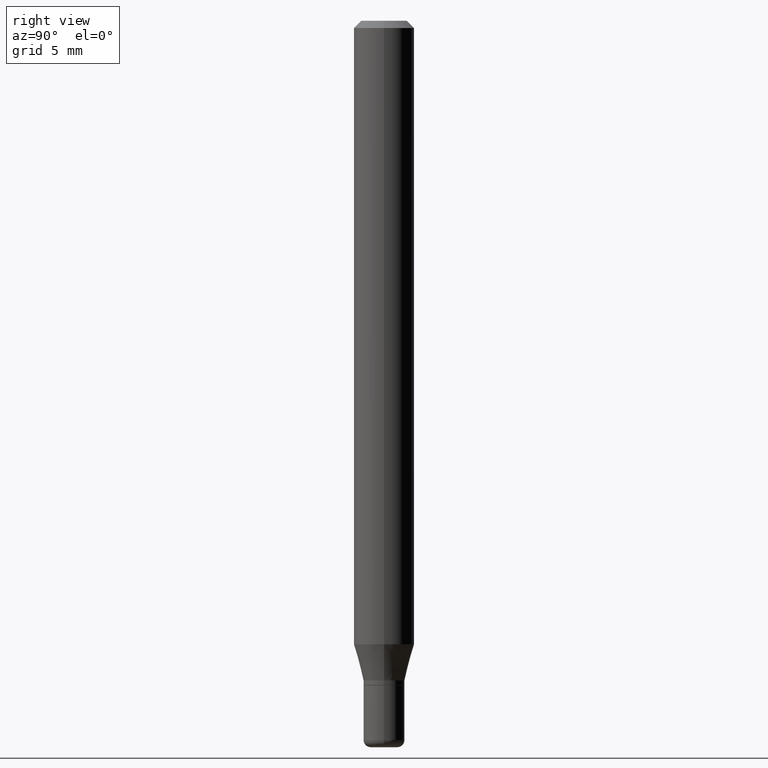
[diagram: clean part render]
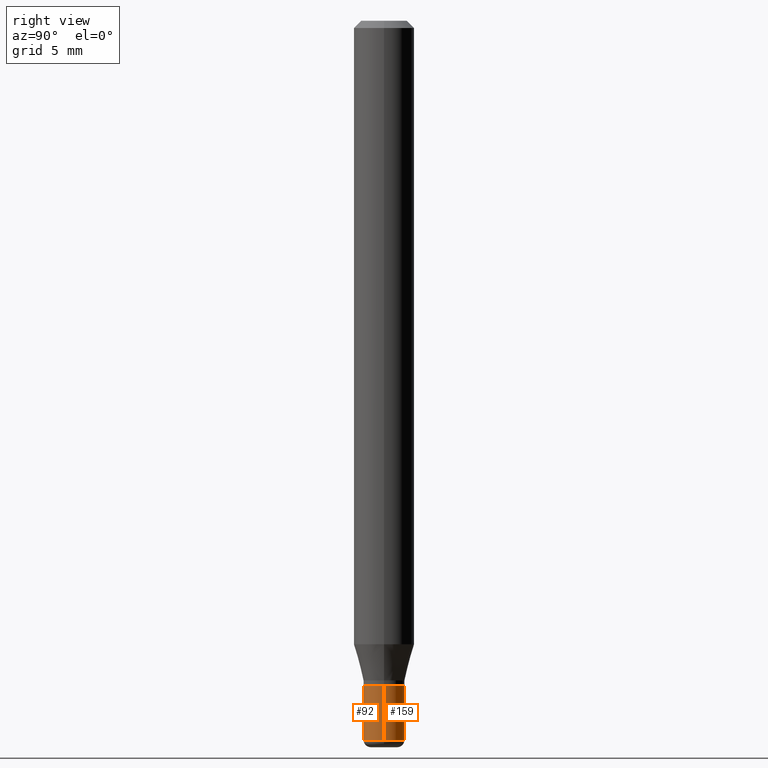
[diagram: same view with one multi-face feature highlighted, each face labeled with its STEP entity id]
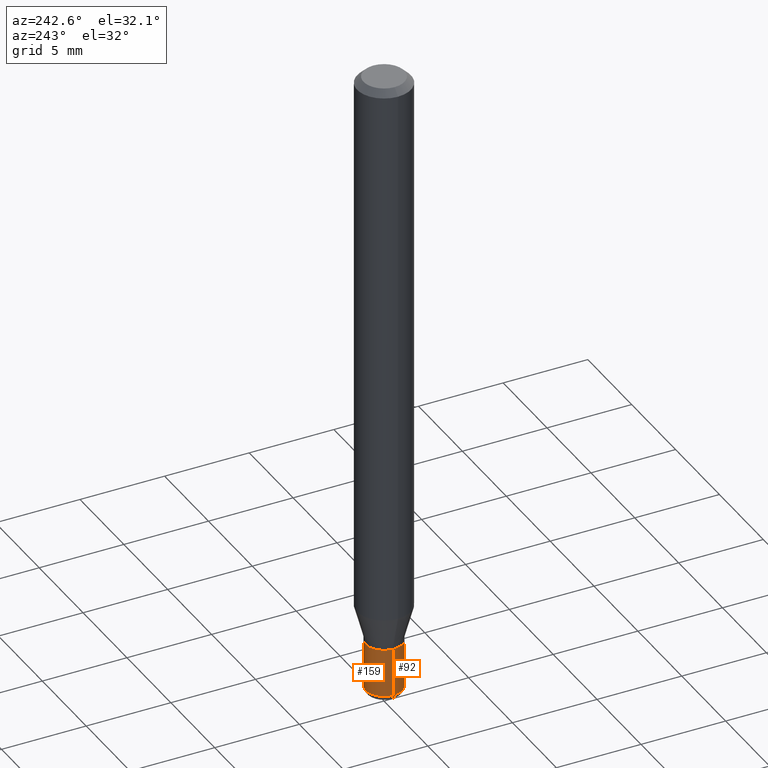
[diagram: same view with one multi-face feature highlighted, each face labeled with its STEP entity id]
A machine part, right view. The highlighted faces form ONE feature: a constant-radius fillet chain: 2 tangent blend faces with common blend radius 1.0795 mm. The faces share edges in the B-rep.
A second angle (auxiliary view) of the same feature is appended — it is thin or edge-on in the first view.
Their STEP definitions:
[1] entity #159 (Cylinder):
#12 = DIRECTION ( 'NONE',  ( -2.445468806185136877E-29, 3.491481338843145188E-15, 1.000000000000000000 ) ) ;
#33 = DIRECTION ( 'NONE',  ( -2.445468806185136597E-29, 3.491481338843145583E-15, 1.000000000000000000 ) ) ;
#39 = CARTESIAN_POINT ( 'NONE',  ( 3.356405936489099934E-29, -4.792058137562217412E-15, -1.372500000000000275 ) ) ;
#49 = ORIENTED_EDGE ( 'NONE', *, *, #429, .F. ) ;
#54 = CARTESIAN_POINT ( 'NONE',  ( 0.04249999999999998918, -2.967759138016663056E-16, 2.072375129713272151E-30 ) ) ;
#55 = VERTEX_POINT ( 'NONE', #490 ) ;
#77 = AXIS2_PLACEMENT_3D ( 'NONE', #378, #456, #184 ) ;
#100 = CYLINDRICAL_SURFACE ( 'NONE', #77, 0.04249999999999998918 ) ;
#110 = ORIENTED_EDGE ( 'NONE', *, *, #245, .F. ) ;
#128 = DIRECTION ( 'NONE',  ( -2.445468806185136597E-29, 3.491481338843145583E-15, 1.000000000000000000 ) ) ;
#148 = CIRCLE ( 'NONE', #241, 0.04249999999999998918 ) ;
#159 = ADVANCED_FACE ( 'NONE', ( #372 ), #100, .T. ) ;
#162 = DIRECTION ( 'NONE',  ( 1.000000000000000000, -6.982962677686276177E-15, 0.000000000000000000 ) ) ;
#174 = CARTESIAN_POINT ( 'NONE',  ( 3.631521177184928138E-29, -5.184849788182071492E-15, -1.485000000000000098 ) ) ;
#184 = DIRECTION ( 'NONE',  ( 1.000000000000000000, -6.982962677686267499E-15, 4.876176775795935793E-29 ) ) ;
#195 = ORIENTED_EDGE ( 'NONE', *, *, #480, .T. ) ;
#205 = CIRCLE ( 'NONE', #261, 0.04249999999999999611 ) ;
#209 = ORIENTED_EDGE ( 'NONE', *, *, #449, .T. ) ;
#233 = CARTESIAN_POINT ( 'NONE',  ( -0.04249999999999999611, -4.686473300174102393E-15, -1.372500000000000275 ) ) ;
#239 = LINE ( 'NONE', #54, #391 ) ;
#241 = AXIS2_PLACEMENT_3D ( 'NONE', #174, #128, #283 ) ;
#245 = EDGE_CURVE ( 'NONE', #424, #306, #205, .T. ) ;
#251 = VECTOR ( 'NONE', #12, 39.37007874015748143 ) ;
#261 = AXIS2_PLACEMENT_3D ( 'NONE', #39, #33, #162 ) ;
#283 = DIRECTION ( 'NONE',  ( 1.000000000000000000, -6.982962677686276966E-15, 0.000000000000000000 ) ) ;
#306 = VERTEX_POINT ( 'NONE', #233 ) ;
#360 = CARTESIAN_POINT ( 'NONE',  ( 0.04249999999999999611, -5.088834051363884062E-15, -1.372500000000000275 ) ) ;
#363 = CARTESIAN_POINT ( 'NONE',  ( -0.04249999999999998918, 3.019806626980425021E-16, -2.090547413358334509E-30 ) ) ;
#368 = DIRECTION ( 'NONE',  ( -2.445468806185136877E-29, 3.491481338843145188E-15, 1.000000000000000000 ) ) ;
#372 = FACE_OUTER_BOUND ( 'NONE', #434, .T. ) ;
#378 = CARTESIAN_POINT ( 'NONE',  ( 0.000000000000000000, 0.000000000000000000, 0.000000000000000000 ) ) ;
#391 = VECTOR ( 'NONE', #368, 39.37007874015748143 ) ;
#424 = VERTEX_POINT ( 'NONE', #360 ) ;
#429 = EDGE_CURVE ( 'NONE', #476, #424, #239, .T. ) ;
#434 = EDGE_LOOP ( 'NONE', ( #209, #195, #110, #49 ) ) ;
#440 = CARTESIAN_POINT ( 'NONE',  ( 0.04249999999999998918, -5.481625701983738143E-15, -1.485000000000000098 ) ) ;
#444 = LINE ( 'NONE', #363, #251 ) ;
#449 = EDGE_CURVE ( 'NONE', #476, #55, #148, .T. ) ;
#456 = DIRECTION ( 'NONE',  ( -2.445468806185136597E-29, 3.491481338843145583E-15, 1.000000000000000000 ) ) ;
#476 = VERTEX_POINT ( 'NONE', #440 ) ;
#480 = EDGE_CURVE ( 'NONE', #55, #306, #444, .T. ) ;
#490 = CARTESIAN_POINT ( 'NONE',  ( -0.04249999999999998918, -4.686473300174102393E-15, -1.485000000000000098 ) ) ;
[2] entity #92 (Cylinder):
#12 = DIRECTION ( 'NONE',  ( -2.445468806185136877E-29, 3.491481338843145188E-15, 1.000000000000000000 ) ) ;
#13 = FACE_OUTER_BOUND ( 'NONE', #518, .T. ) ;
#25 = DIRECTION ( 'NONE',  ( 1.000000000000000000, -6.982962677686276966E-15, 0.000000000000000000 ) ) ;
#54 = CARTESIAN_POINT ( 'NONE',  ( 0.04249999999999998918, -2.967759138016663056E-16, 2.072375129713272151E-30 ) ) ;
#55 = VERTEX_POINT ( 'NONE', #490 ) ;
#84 = CYLINDRICAL_SURFACE ( 'NONE', #315, 0.04249999999999998918 ) ;
#92 = ADVANCED_FACE ( 'NONE', ( #13 ), #84, .T. ) ;
#113 = DIRECTION ( 'NONE',  ( 1.000000000000000000, -6.982962677686276177E-15, 0.000000000000000000 ) ) ;
#122 = ORIENTED_EDGE ( 'NONE', *, *, #480, .F. ) ;
#142 = EDGE_CURVE ( 'NONE', #55, #476, #214, .T. ) ;
#158 = ORIENTED_EDGE ( 'NONE', *, *, #429, .T. ) ;
#193 = ORIENTED_EDGE ( 'NONE', *, *, #293, .F. ) ;
#214 = CIRCLE ( 'NONE', #502, 0.04249999999999998918 ) ;
#233 = CARTESIAN_POINT ( 'NONE',  ( -0.04249999999999999611, -4.686473300174102393E-15, -1.372500000000000275 ) ) ;
#236 = CARTESIAN_POINT ( 'NONE',  ( 3.356405936489099934E-29, -4.792058137562217412E-15, -1.372500000000000275 ) ) ;
#239 = LINE ( 'NONE', #54, #391 ) ;
#240 = CARTESIAN_POINT ( 'NONE',  ( 0.000000000000000000, 0.000000000000000000, 0.000000000000000000 ) ) ;
#251 = VECTOR ( 'NONE', #12, 39.37007874015748143 ) ;
#293 = EDGE_CURVE ( 'NONE', #306, #424, #463, .T. ) ;
#306 = VERTEX_POINT ( 'NONE', #233 ) ;
#315 = AXIS2_PLACEMENT_3D ( 'NONE', #240, #398, #465 ) ;
#360 = CARTESIAN_POINT ( 'NONE',  ( 0.04249999999999999611, -5.088834051363884062E-15, -1.372500000000000275 ) ) ;
#363 = CARTESIAN_POINT ( 'NONE',  ( -0.04249999999999998918, 3.019806626980425021E-16, -2.090547413358334509E-30 ) ) ;
#368 = DIRECTION ( 'NONE',  ( -2.445468806185136877E-29, 3.491481338843145188E-15, 1.000000000000000000 ) ) ;
#376 = CARTESIAN_POINT ( 'NONE',  ( 3.631521177184928138E-29, -5.184849788182071492E-15, -1.485000000000000098 ) ) ;
#391 = VECTOR ( 'NONE', #368, 39.37007874015748143 ) ;
#398 = DIRECTION ( 'NONE',  ( -2.445468806185136597E-29, 3.491481338843145583E-15, 1.000000000000000000 ) ) ;
#410 = DIRECTION ( 'NONE',  ( -2.445468806185136597E-29, 3.491481338843145583E-15, 1.000000000000000000 ) ) ;
#418 = ORIENTED_EDGE ( 'NONE', *, *, #142, .T. ) ;
#423 = AXIS2_PLACEMENT_3D ( 'NONE', #236, #468, #113 ) ;
#424 = VERTEX_POINT ( 'NONE', #360 ) ;
#429 = EDGE_CURVE ( 'NONE', #476, #424, #239, .T. ) ;
#440 = CARTESIAN_POINT ( 'NONE',  ( 0.04249999999999998918, -5.481625701983738143E-15, -1.485000000000000098 ) ) ;
#444 = LINE ( 'NONE', #363, #251 ) ;
#463 = CIRCLE ( 'NONE', #423, 0.04249999999999999611 ) ;
#465 = DIRECTION ( 'NONE',  ( 1.000000000000000000, -6.982962677686267499E-15, 4.876176775795935793E-29 ) ) ;
#468 = DIRECTION ( 'NONE',  ( -2.445468806185136597E-29, 3.491481338843145583E-15, 1.000000000000000000 ) ) ;
#476 = VERTEX_POINT ( 'NONE', #440 ) ;
#480 = EDGE_CURVE ( 'NONE', #55, #306, #444, .T. ) ;
#490 = CARTESIAN_POINT ( 'NONE',  ( -0.04249999999999998918, -4.686473300174102393E-15, -1.485000000000000098 ) ) ;
#502 = AXIS2_PLACEMENT_3D ( 'NONE', #376, #410, #25 ) ;
#518 = EDGE_LOOP ( 'NONE', ( #122, #418, #158, #193 ) ) ;